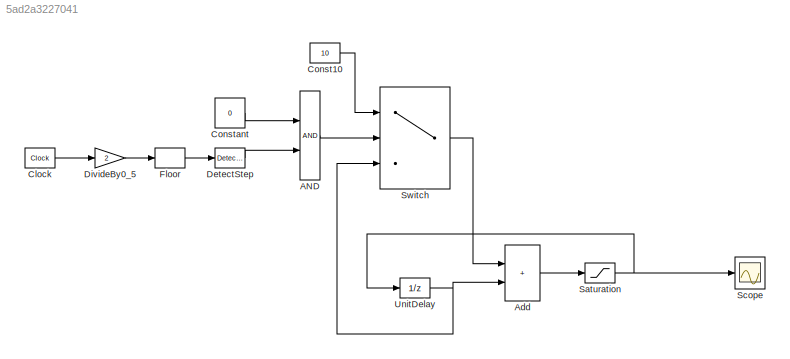
MODEL slx_5ad2a3227041
KIND model
CONFIG AbsTol = auto
CONFIG EnableMultiTasking = off
CONFIG FixedStep = auto
CONFIG MaxStep = auto
CONFIG MinStep = auto
CONFIG RelTol = 1e-3
CONFIG SampleTimeConstraint = Unconstrained
CONFIG SolverName = VariableStepAuto
CONFIG StartTime = 0.0
CONFIG StopTime = 10.0
BLOCK [Logic] AND
  AllPortsSameDT = off
  OutDataTypeStr = boolean
BLOCK [Sum] Add
  IconShape = rectangular
BLOCK [Clock] Clock
BLOCK [Constant] Const10
  Value = 10
BLOCK [Constant] Constant
  Value = 0
BLOCK [Reference] DetectStep  REF=simulink/Logic and Bit
Operations/Detect
Increase
  SourceBlock = simulink/Logic and Bit\nOperations/Detect\nIncrease
  SourceType = Detect Increase
BLOCK [Gain] DivideBy0_5
  Gain = 2
BLOCK [Rounding] Floor
BLOCK [Saturate] Saturation
  LowerLimit = 0
  UpperLimit = 100
BLOCK [Scope] Scope
  ActiveDisplayYMaximum = 112.5
  ActiveDisplayYMinimum = -12.499999999999996
  Floating = off
  GraphicalSettings = {"Style":{"BackgroundColor":[0.12941176470588237,0.12941176470588237,0.12941176470588237],"AxesColor":[0.07058823529411765,0.07058823529411765,0.07058823529411765],"LabelsColor":[0.8509803921568627,0.8509803921568627,0.8509803921568627],"PreserveColors":false,"Visible":[true],"LineStyle":["-"],"LineWidth":[1.5],"BarWidth":[0.9],"LineColor":["auto"],"LineFaceAlpha":[1],"LineEdgeAlpha":[1],"Marker":...<+1942ch>
  MultipleDisplayCache = [{"MaxYLimMag":112.5,"MaxYLimReal":112.5,"MinYLimMag":0,"MinYLimReal":-12.499999999999996,"PlotAsMagnitudePhase":false,"ShowGrid":true,"ShowLegend":false,"Title":"%<SignalLabel>","YLabel":""}]
  NumInputPorts = 1
  ScopeFrameLocation = window
  Visible = on
  WasSavedAsWebScope = on
  WindowPosition = [896.000000,347.000000,455.000000,358.000000,]
BLOCK [Switch] Switch
  InputSameDT = off
  SaturateOnIntegerOverflow = off
  Threshold = 0.5
BLOCK [UnitDelay] UnitDelay
  HasFrameUpgradeWarning = on
  SampleTime = 0.5
LINE AND:1 -> Switch:2
LINE Add:1 -> Saturation:1
LINE Clock:1 -> DivideBy0_5:1
LINE Const10:1 -> Switch:1
LINE Constant:1 -> AND:1
LINE DetectStep:1 -> AND:2
LINE DivideBy0_5:1 -> Floor:1
LINE Floor:1 -> DetectStep:1
NET Saturation:1 -> Scope:1, UnitDelay:1
LINE Switch:1 -> Add:1
NET UnitDelay:1 -> Add:2, Switch:3
note: NET lines group one-source signal fan-out (src -> all destinations, sorted); 1:1 wires keep LINE
